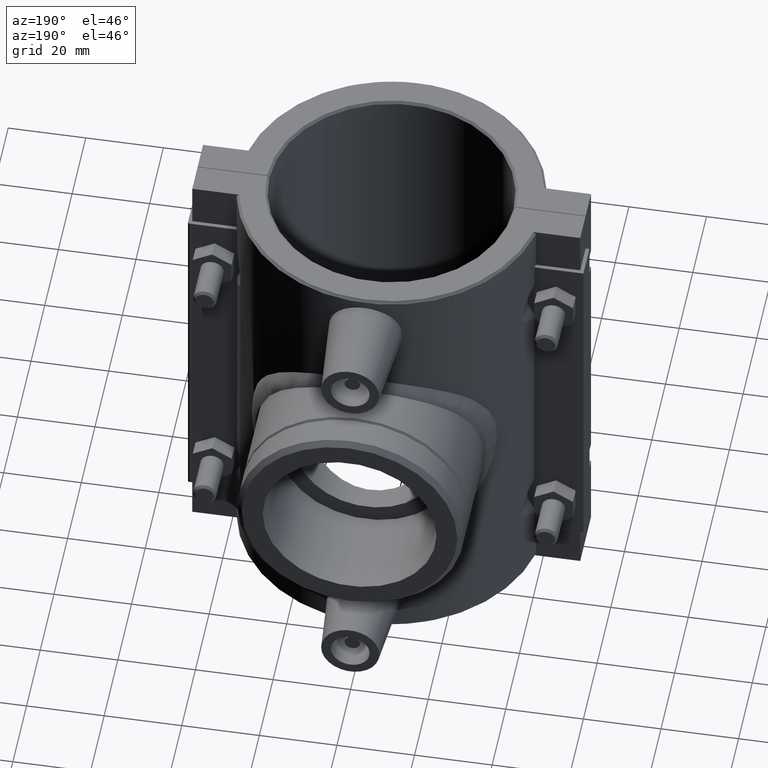
[diagram: clean part render]
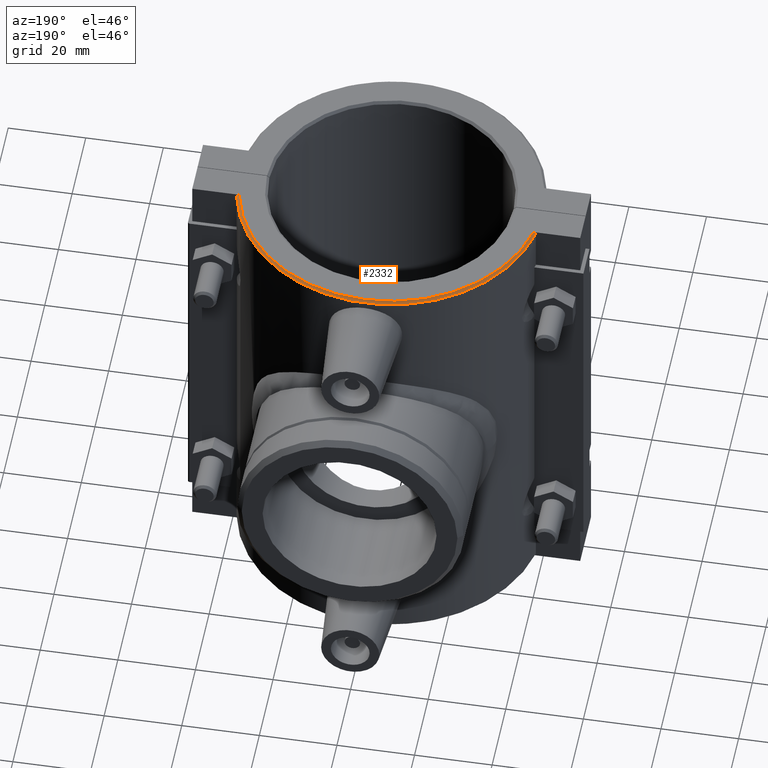
[diagram: same view with one face highlighted and labeled with its STEP entity id]
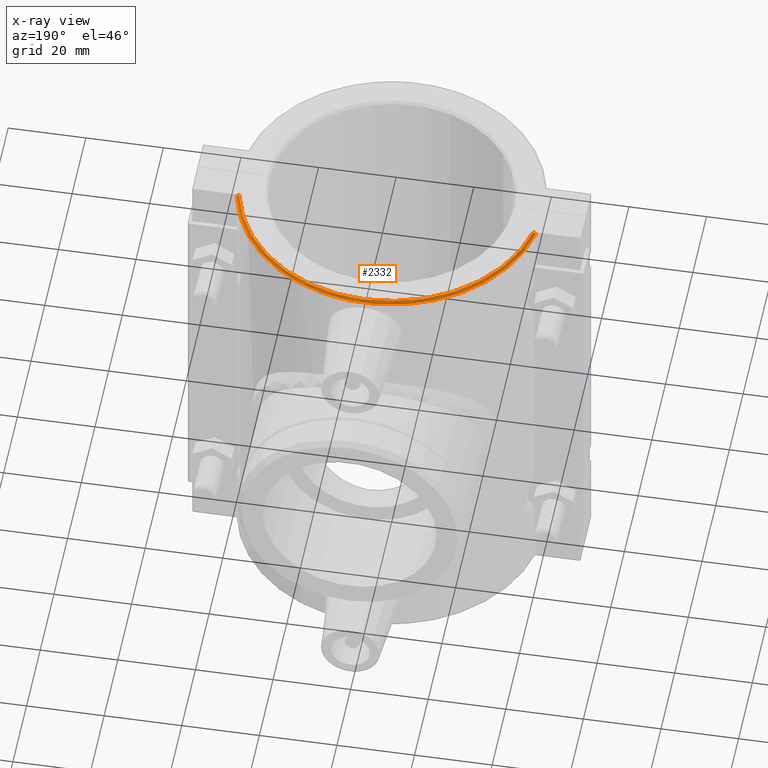
[diagram: x-ray of the same camera — body ghosted, the highlighted face saturated]
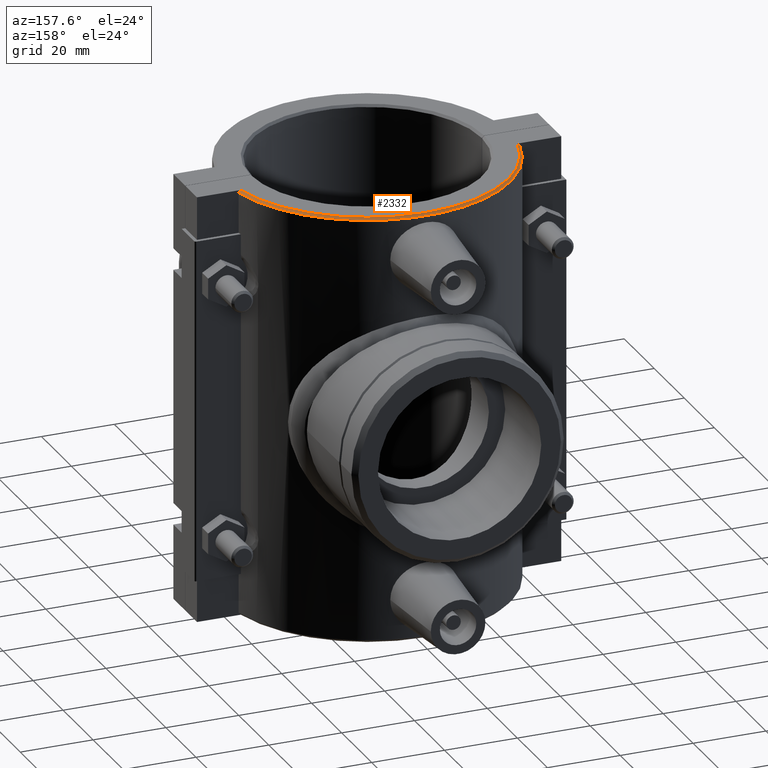
[diagram: same view with one face highlighted and labeled with its STEP entity id]
A machine part, auxiliary view. The second image highlights one B-rep face of the part: STEP entity #2332.
The next image is the same camera in x-ray: the body ghosted, the highlighted face saturated — about 0% of this face is hidden behind the body in this view.
A second angle (auxiliary view) of the same face is appended — the face is thin or edge-on in the first view.
In plain terms, the highlighted conical surface has half-angle 45 deg.
Its self-contained STEP definition (entity closure, byte-faithful):
#26=CONICAL_SURFACE('',#2520,39.06,45.0000000000002);
#36=(
BOUNDED_CURVE()
B_SPLINE_CURVE(2,(#3383,#3384,#3385),.UNSPECIFIED.,.F.,.F.)
B_SPLINE_CURVE_WITH_KNOTS((3,3),(0.,0.090034318503411),.UNSPECIFIED.)
CURVE()
GEOMETRIC_REPRESENTATION_ITEM()
RATIONAL_B_SPLINE_CURVE((1.,1.00003389760153,1.))
REPRESENTATION_ITEM('')
);
#37=(
BOUNDED_CURVE()
B_SPLINE_CURVE(2,(#3587,#3588,#3589),.UNSPECIFIED.,.F.,.F.)
B_SPLINE_CURVE_WITH_KNOTS((3,3),(0.,0.0900343185034107),.UNSPECIFIED.)
CURVE()
GEOMETRIC_REPRESENTATION_ITEM()
RATIONAL_B_SPLINE_CURVE((1.,1.00003389763031,1.))
REPRESENTATION_ITEM('')
);
#268=FACE_OUTER_BOUND('',#442,.T.);
#442=EDGE_LOOP('',(#1956,#1957,#1958,#1959));
#912=CIRCLE('',#2456,39.375);
#940=CIRCLE('',#2521,38.745);
#1004=VERTEX_POINT('',#3380);
#1005=VERTEX_POINT('',#3382);
#1050=VERTEX_POINT('',#3584);
#1051=VERTEX_POINT('',#3586);
#1232=EDGE_CURVE('',#1005,#1004,#36,.F.);
#1292=EDGE_CURVE('',#1051,#1050,#37,.F.);
#1334=EDGE_CURVE('',#1050,#1005,#912,.T.);
#1434=EDGE_CURVE('',#1004,#1051,#940,.T.);
#1956=ORIENTED_EDGE('',*,*,#1292,.T.);
#1957=ORIENTED_EDGE('',*,*,#1334,.T.);
#1958=ORIENTED_EDGE('',*,*,#1232,.T.);
#1959=ORIENTED_EDGE('',*,*,#1434,.T.);
#2332=ADVANCED_FACE('',(#268),#26,.T.);
#2456=AXIS2_PLACEMENT_3D('',#3809,#2847,#2848);
#2520=AXIS2_PLACEMENT_3D('',#4265,#3029,#3030);
#2521=AXIS2_PLACEMENT_3D('',#4266,#3031,#3032);
#2847=DIRECTION('center_axis',(0.,0.,1.));
#2848=DIRECTION('ref_axis',(1.,0.,0.));
#3029=DIRECTION('center_axis',(0.,0.,-1.));
#3030=DIRECTION('ref_axis',(1.,0.,0.));
#3031=DIRECTION('center_axis',(0.,0.,-1.));
#3032=DIRECTION('ref_axis',(1.,0.,0.));
#3380=CARTESIAN_POINT('',(-37.936254427658,7.875,59.));
#3382=CARTESIAN_POINT('',(-38.5794634488351,7.875,58.37));
#3383=CARTESIAN_POINT('Ctrl Pts',(-37.936254427658,7.875,59.));
#3384=CARTESIAN_POINT('Ctrl Pts',(-38.2552653535105,7.875,58.6876479636509));
#3385=CARTESIAN_POINT('Ctrl Pts',(-38.5794634488351,7.875,58.37));
#3584=CARTESIAN_POINT('',(38.5794634488351,7.87499999999999,58.37));
#3586=CARTESIAN_POINT('',(37.936254427658,7.87499999999999,59.));
#3587=CARTESIAN_POINT('Ctrl Pts',(38.5794634488351,7.87499999999999,58.37));
#3588=CARTESIAN_POINT('Ctrl Pts',(38.2552653535041,7.87499999999999,58.6876479636572));
#3589=CARTESIAN_POINT('Ctrl Pts',(37.936254427658,7.87499999999999,59.));
#3809=CARTESIAN_POINT('Origin',(0.,0.,58.37));
#4265=CARTESIAN_POINT('Origin',(0.,0.,58.685));
#4266=CARTESIAN_POINT('Origin',(0.,0.,59.));